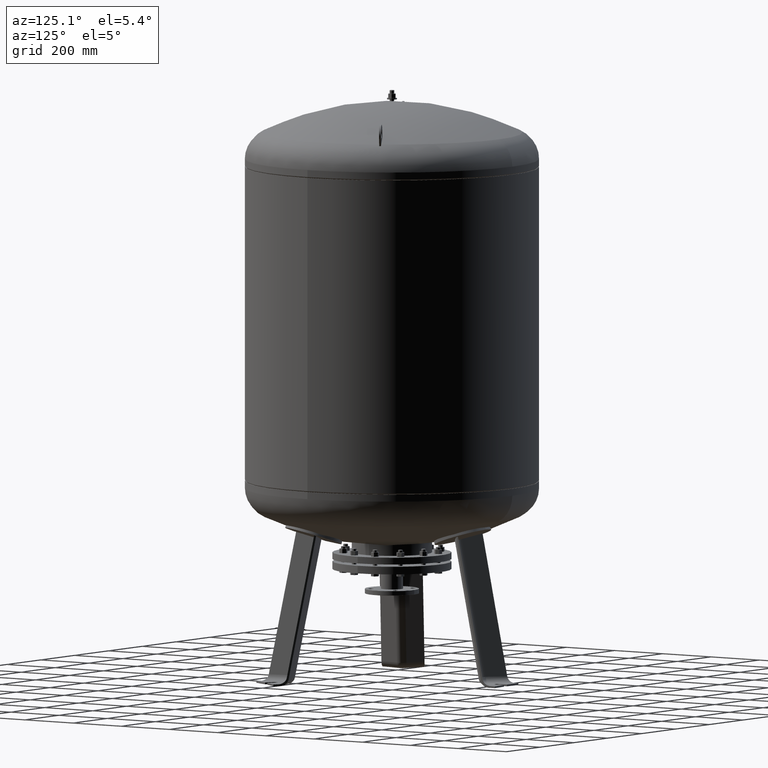
[diagram: clean part render]
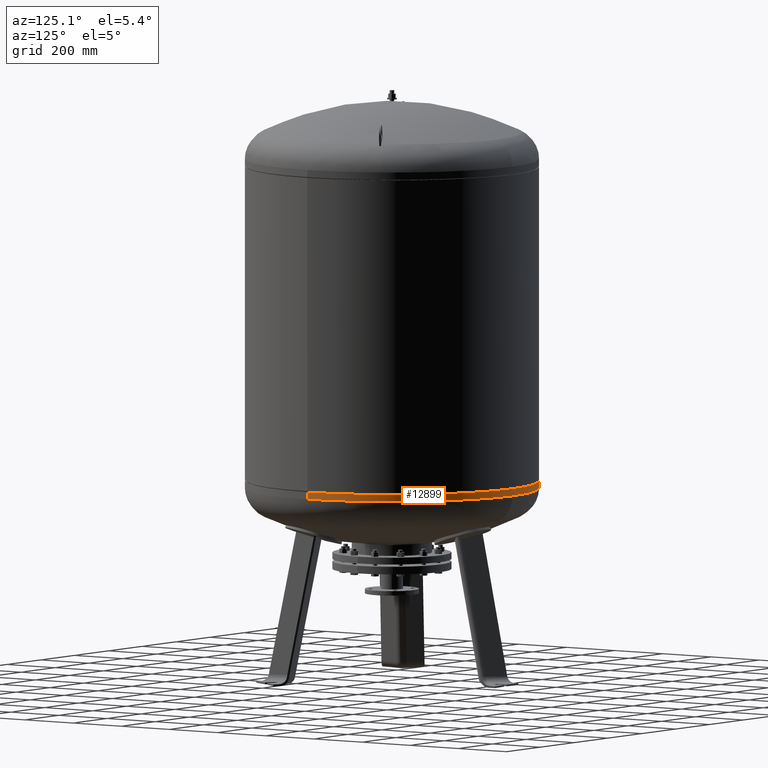
[diagram: same view with one face highlighted and labeled with its STEP entity id]
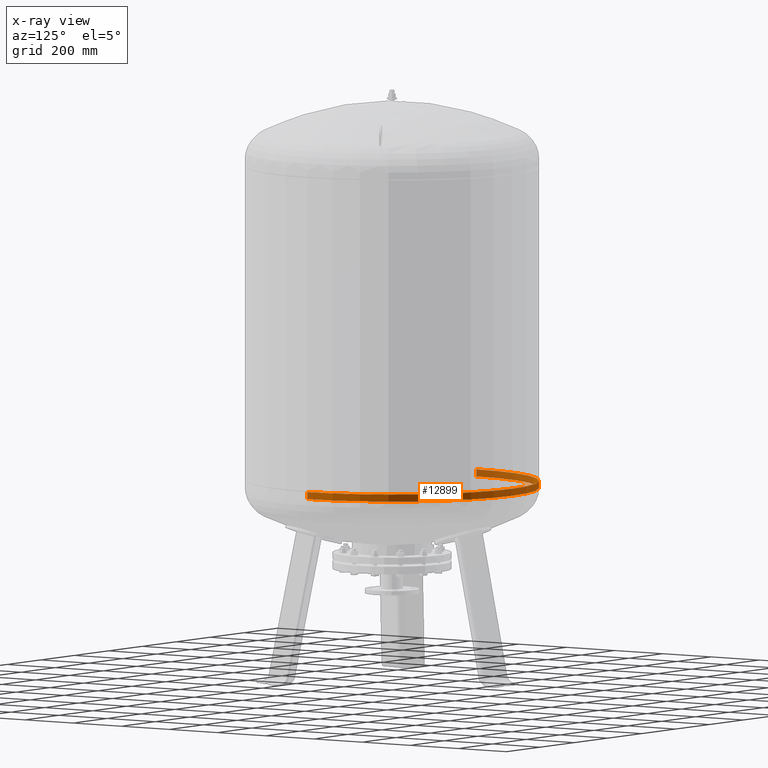
[diagram: x-ray of the same camera — body ghosted, the highlighted face saturated]
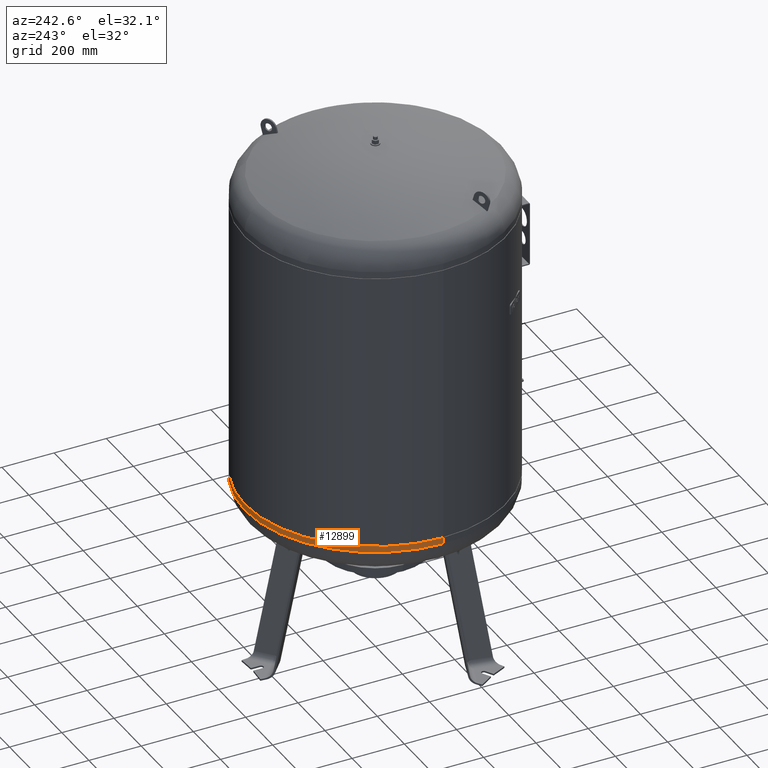
[diagram: same view with one face highlighted and labeled with its STEP entity id]
A machine part, auxiliary view. The second image highlights one B-rep face of the part: STEP entity #12899.
The next image is the same camera in x-ray: the body ghosted, the highlighted face saturated — about 19% of this face is hidden behind the body in this view.
A second angle (auxiliary view) of the same face is appended — the face is thin or edge-on in the first view.
In plain terms, the highlighted cylindrical surface (partial cylindrical patch) has radius 500 mm, axis along (-0, -0, 1).
Its self-contained STEP definition (entity closure, byte-faithful):
#12849=CARTESIAN_POINT('',(-2.756489E-014,-3.774564E-014,664.477677536359810));
#12850=DIRECTION('',(-1.341503E-016,-1.836970E-016,1.0));
#12851=DIRECTION('',(-1.0,0.0,0.0));
#12852=AXIS2_PLACEMENT_3D('',#12849,#12850,#12851);
#12853=CYLINDRICAL_SURFACE('',#12852,500.0);
#12854=CARTESIAN_POINT('',(-500.0,-3.995410E-014,676.500000000000000));
#12855=VERTEX_POINT('',#12854);
#12856=CARTESIAN_POINT('',(-500.0,-3.553717E-014,652.455355072719390));
#12857=VERTEX_POINT('',#12856);
#12858=CARTESIAN_POINT('',(-500.0,-3.995410E-014,676.500000000000000));
#12859=DIRECTION('',(0.0,0.0,-1.0));
#12860=VECTOR('',#12859,24.044644927280615);
#12861=LINE('',#12858,#12860);
#12862=EDGE_CURVE('',#12855,#12857,#12861,.T.);
#12863=ORIENTED_EDGE('',*,*,#12862,.F.);
#12864=CARTESIAN_POINT('',(500.0,2.127622E-014,676.500000000000110));
#12865=VERTEX_POINT('',#12864);
#12866=CARTESIAN_POINT('',(-2.917769E-014,-3.995410E-014,676.500000000000000));
#12867=DIRECTION('',(0.0,0.0,1.0));
#12868=DIRECTION('',(-1.0,0.0,0.0));
#12869=AXIS2_PLACEMENT_3D('',#12866,#12867,#12868);
#12870=CIRCLE('',#12869,500.0);
#12871=EDGE_CURVE('',#12865,#12855,#12870,.T.);
#12872=ORIENTED_EDGE('',*,*,#12871,.F.);
#12873=CARTESIAN_POINT('',(500.0,2.569315E-014,652.455355072719500));
#12874=VERTEX_POINT('',#12873);
#12875=CARTESIAN_POINT('',(500.0,2.127622E-014,676.500000000000110));
#12876=DIRECTION('',(0.0,0.0,-1.0));
#12877=VECTOR('',#12876,24.044644927280615);
#12878=LINE('',#12875,#12877);
#12879=EDGE_CURVE('',#12865,#12874,#12878,.T.);
#12880=ORIENTED_EDGE('',*,*,#12879,.T.);
#12881=CARTESIAN_POINT('',(-6.123032E-014,499.999999999999940,652.455355072719610));
#12882=VERTEX_POINT('',#12881);
#12883=CARTESIAN_POINT('',(-2.595210E-014,-3.553717E-014,652.455355072719500));
#12884=DIRECTION('',(0.0,0.0,1.0));
#12885=DIRECTION('',(-1.0,0.0,0.0));
#12886=AXIS2_PLACEMENT_3D('',#12883,#12884,#12885);
#12887=CIRCLE('',#12886,500.0);
#12888=EDGE_CURVE('',#12874,#12882,#12887,.T.);
#12889=ORIENTED_EDGE('',*,*,#12888,.T.);
#12890=CARTESIAN_POINT('',(-2.595210E-014,-3.553717E-014,652.455355072719500));
#12891=DIRECTION('',(0.0,0.0,1.0));
#12892=DIRECTION('',(-1.0,0.0,0.0));
#12893=AXIS2_PLACEMENT_3D('',#12890,#12891,#12892);
#12894=CIRCLE('',#12893,500.0);
#12895=EDGE_CURVE('',#12882,#12857,#12894,.T.);
#12896=ORIENTED_EDGE('',*,*,#12895,.T.);
#12897=EDGE_LOOP('',(#12863,#12872,#12880,#12889,#12896));
#12898=FACE_OUTER_BOUND('',#12897,.T.);
#12899=ADVANCED_FACE('',(#12898),#12853,.T.);